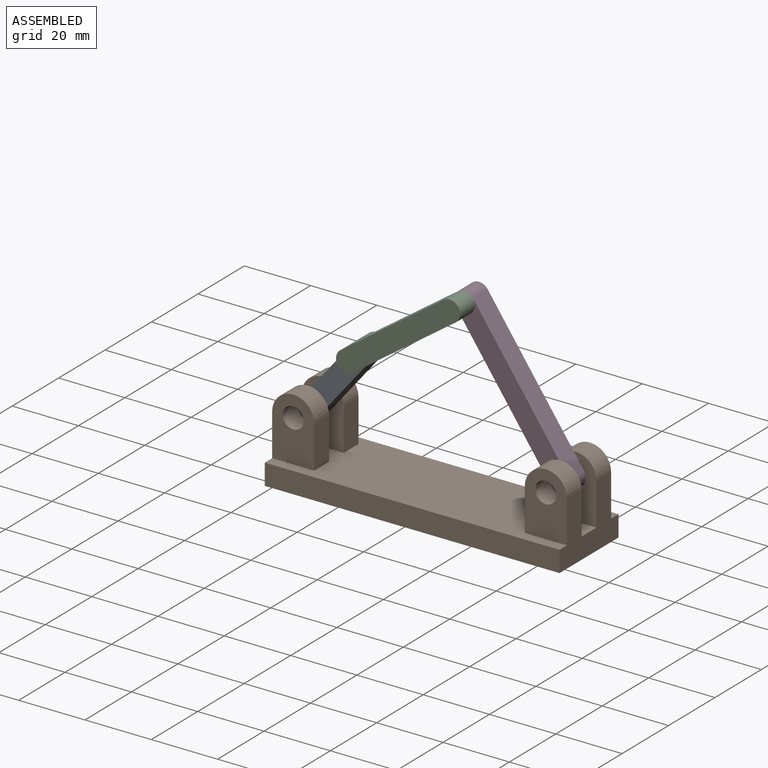
[diagram: assembled view]
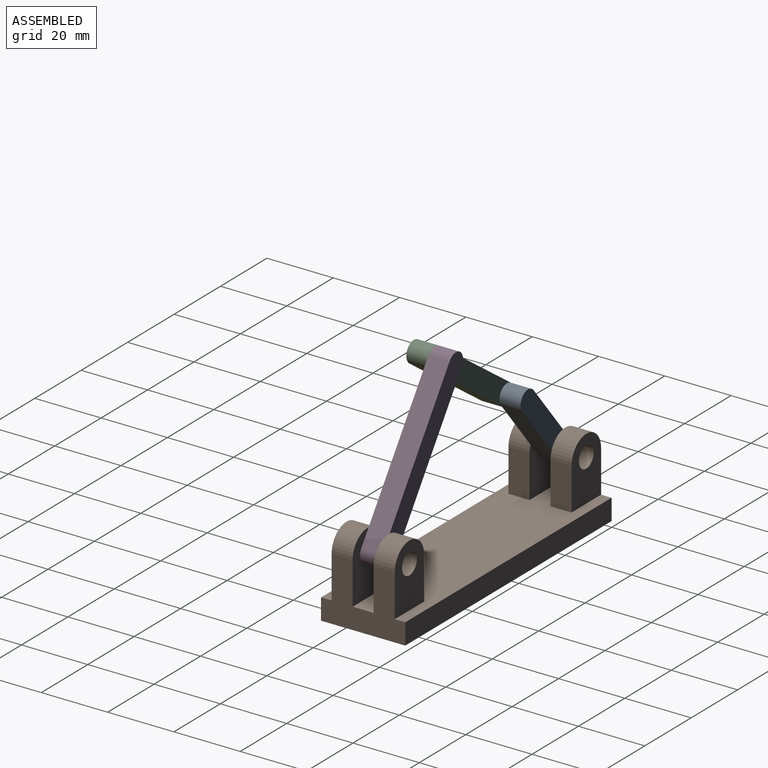
[diagram: assembled view, second angle]
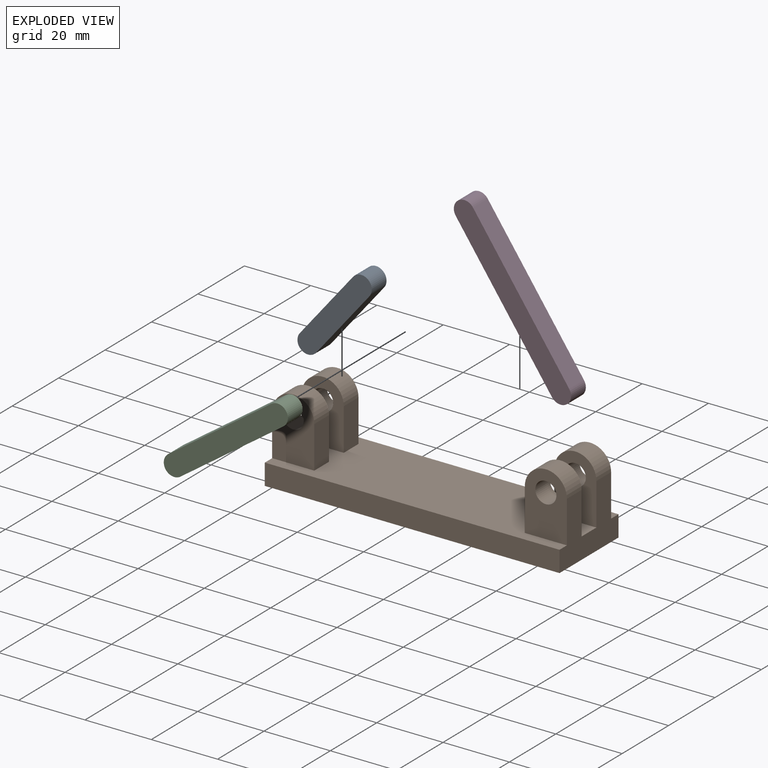
[diagram: exploded view]
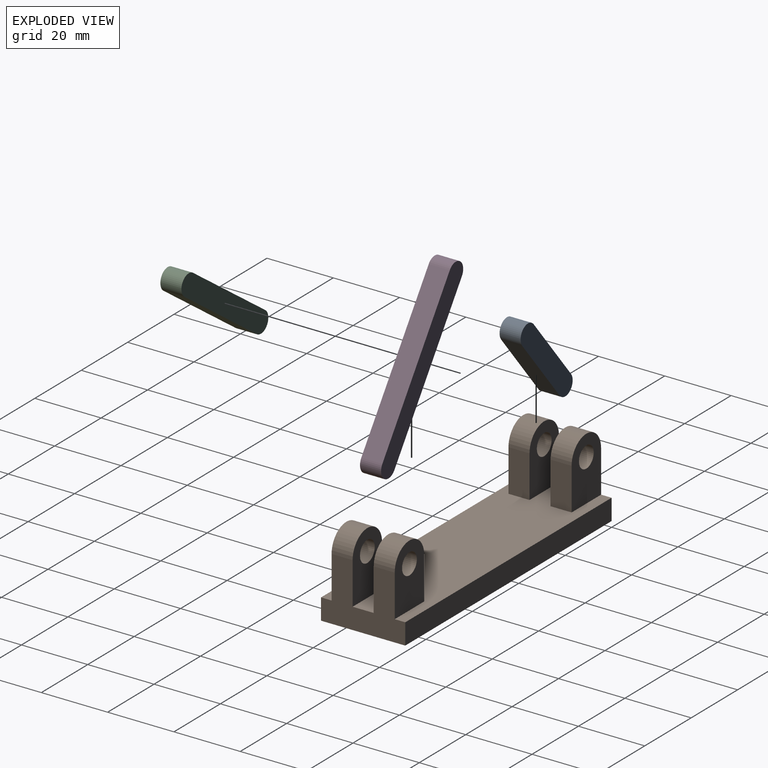
[diagram: exploded view, second angle]
ASSEMBLY  parts=4 mates=4
PART A: 6 faces, bbox 9.8x6.4x31.5 mm
  f0: cylinder r=3.17mm len=6.35mm, axis (0,1,0), area 63.3mm2, adj f1,f3,f4,f5
  f1: plane 25.17x6.35mm, normal (0.99,0,0.13), area 161.3mm2, adj f0,f2,f4,f5
  f2: cylinder r=3.17mm len=6.35mm, axis (0,1,0), area 63.3mm2, adj f1,f3,f4,f5
  f3: plane 25.17x6.35mm, normal (-0.99,0,-0.13), area 161.3mm2, adj f0,f2,f4,f5
  f4: plane 31.52x9.75mm, normal (0,-1,0), area 193mm2, adj f0,f1,f2,f3
  f5: plane 31.52x9.75mm, normal (0,1,0), area 193mm2, adj f0,f1,f2,f3
PART B: 26 faces, bbox 88.9x25.4x25.4 mm
  f0: plane 88.9x25.4mm, normal (0,0,1), area 1935.5mm2, adj f1,f3,f4,f5,f6,f7,f8,f9
  f1: plane 25.4x19.05mm, normal (-1,0,0), area 322.6mm2, adj f0,f2,f4,f5,f12,f13,f15,f16
  f2: plane 88.9x25.4mm, normal (0,0,-1), area 2258.1mm2, adj f1,f3,f4,f5
  f3: plane 25.4x19.05mm, normal (1,0,0), area 322.6mm2, adj f0,f2,f4,f5,f6,f8,f9,f11
  f4: plane 88.9x6.35mm, normal (0,-1,0), area 564.5mm2, adj f0,f1,f2,f3
  f5: plane 88.9x6.35mm, normal (0,1,0), area 564.5mm2, adj f0,f1,f2,f3
  f6: plane 19.05x12.7mm, normal (0,1,0), area 193mm2, adj f0,f3,f7,f21,f25
  f7: plane 12.7x6.35mm, normal (-1,0,0), area 80.6mm2, adj f0,f6,f8,f21
  f8: plane 19.05x12.7mm, normal (0,-1,0), area 193mm2, adj f0,f3,f7,f21,f25
  f9: plane 19.05x12.7mm, normal (0,1,0), area 193mm2, adj f0,f3,f10,f20,f24
  f10: plane 12.7x6.35mm, normal (-1,0,0), area 80.6mm2, adj f0,f9,f11,f20
  f11: plane 19.05x12.7mm, normal (0,-1,0), area 193mm2, adj f0,f3,f10,f20,f24
  f12: plane 19.05x12.7mm, normal (0,1,0), area 193mm2, adj f0,f1,f14,f19,f23
  f13: plane 19.05x12.7mm, normal (0,-1,0), area 193mm2, adj f0,f1,f14,f19,f23
  f14: plane 12.7x6.35mm, normal (1,0,0), area 80.6mm2, adj f0,f12,f13,f19
  f15: plane 19.05x12.7mm, normal (0,1,0), area 193mm2, adj f0,f1,f17,f18,f22
  f16: plane 19.05x12.7mm, normal (0,-1,0), area 193mm2, adj f0,f1,f17,f18,f22
  f17: plane 12.7x6.35mm, normal (1,0,0), area 80.6mm2, adj f0,f15,f16,f18
  f18: cylinder r=6.35mm len=12.7mm, axis (0,-1,0), area 126.7mm2, adj f1,f15,f16,f17
  f19: cylinder r=6.35mm len=12.7mm, axis (0,-1,0), area 126.7mm2, adj f1,f12,f13,f14
  f20: cylinder r=6.35mm len=12.7mm, axis (0,-1,0), area 126.7mm2, adj f3,f9,f10,f11
  f21: cylinder r=6.35mm len=12.7mm, axis (0,-1,0), area 126.7mm2, adj f3,f6,f7,f8
  f22: cylinder r=3.17mm len=6.35mm, axis (0,-1,0), area 126.7mm2, adj f15,f16
  f23: cylinder r=3.17mm len=6.35mm, axis (0,-1,0), area 126.7mm2, adj f12,f13
  f24: cylinder r=3.17mm len=6.35mm, axis (0,-1,0), area 126.7mm2, adj f9,f11
  f25: cylinder r=3.17mm len=6.35mm, axis (0,-1,0), area 126.7mm2, adj f6,f8
PART C: 6 faces, bbox 44.3x6.4x10.2 mm
  f0: plane 37.91x6.35mm, normal (-0.1,0,0.99), area 241.9mm2, adj f1,f3,f4,f5
  f1: cylinder r=3.17mm len=6.35mm, axis (0,1,0), area 63.3mm2, adj f0,f2,f4,f5
  f2: plane 37.91x6.35mm, normal (0.1,0,-0.99), area 241.9mm2, adj f1,f3,f4,f5
  f3: cylinder r=3.17mm len=6.35mm, axis (0,1,0), area 63.3mm2, adj f0,f2,f4,f5
  f4: plane 44.26x10.19mm, normal (0,-1,0), area 273.6mm2, adj f0,f1,f2,f3
  f5: plane 44.26x10.19mm, normal (0,1,0), area 273.6mm2, adj f0,f1,f2,f3
PART D: 6 faces, bbox 48x6.4x35.4 mm
  f0: cylinder r=3.17mm len=6.35mm, axis (0,-1,0), area 63.3mm2, adj f1,f3,f4,f5
  f1: plane 41.7x29.01mm, normal (0.57,0,0.82), area 322.6mm2, adj f0,f2,f4,f5
  f2: cylinder r=3.17mm len=6.35mm, axis (0,-1,0), area 63.3mm2, adj f1,f3,f4,f5
  f3: plane 41.7x29.01mm, normal (-0.57,0,-0.82), area 322.6mm2, adj f0,f2,f4,f5
  f4: plane 48.05x35.36mm, normal (0,1,0), area 354.2mm2, adj f0,f1,f2,f3
  f5: plane 48.05x35.36mm, normal (0,-1,0), area 354.2mm2, adj f0,f1,f2,f3
PLACE A rot(axis=(0,1,0),47deg) t=(-11.91,0,10.69)mm
PLACE B at identity fixed
PLACE C rot(axis=(0,-1,0),29.5deg) t=(41.65,0,-1.22)mm
PLACE D rot(axis=(0,1,0),20.3deg) t=(-1.48,0,29.84)mm
MATE revolute B.f18 <-> A.f0  axis (0,-1,0) through (6.35,-9.53,19.05)mm
MATE revolute C.f3 <-> D.f0  axis (0,1,0) through (53.52,-15.88,60.74)mm
MATE revolute C.f1 <-> A.f2  axis (0,1,0) through (22.43,-15.88,38.72)mm
MATE revolute B.f20 <-> D.f2  axis (0,-1,0) through (82.55,-9.53,19.05)mm
